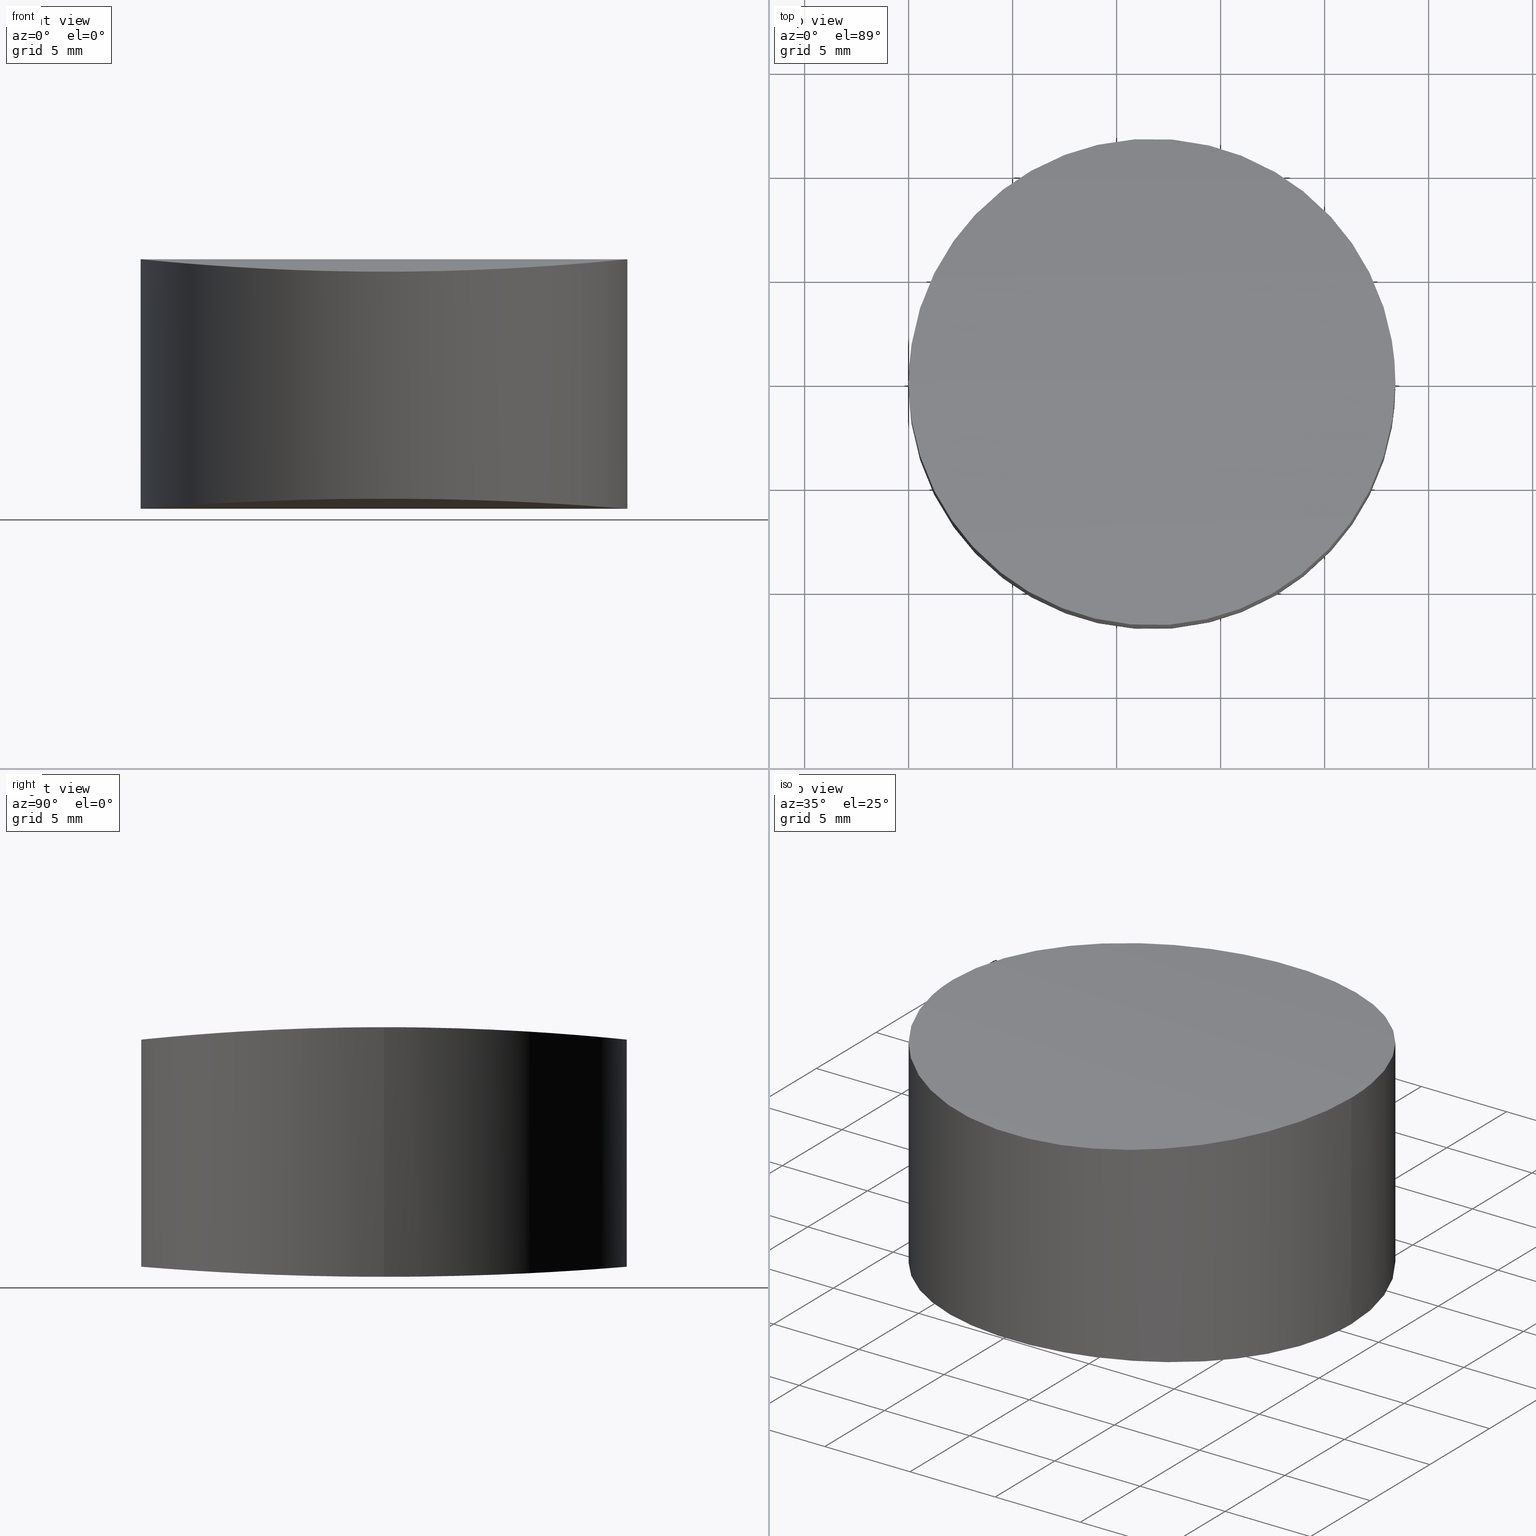
[diagram: canonical four-view strip — front | top / right | iso, engineering-drawing reading convention]
A machine part, canonical four-view strip (front | top / right | iso — engineering-drawing reading convention). The complete STEP part file that produces these views, byte-faithful:
ISO-10303-21;
HEADER;
FILE_DESCRIPTION (( 'STEP AP203' ),
    '1' );
FILE_NAME ('159007.STEP',
    '2024-12-10T01:54:20',
    ( '' ),
    ( '' ),
    'SwSTEP 2.0',
    'SolidWorks 2020',
    '' );
FILE_SCHEMA (( 'CONFIG_CONTROL_DESIGN' ));
ENDSEC;

DATA;
#1 = SECURITY_CLASSIFICATION ( '', '', #237 ) ;
#2 = EDGE_LOOP ( 'NONE', ( #31, #314 ) ) ;
#3 = EDGE_CURVE ( 'NONE', #56, #81, #285, .T. ) ;
#4 = VECTOR ( 'NONE', #33, 1000.000000000000000 ) ;
#5 = DIRECTION ( 'NONE',  ( -1.000000000000000000, -0.000000000000000000, -0.000000000000000000 ) ) ;
#6 = CARTESIAN_POINT ( 'NONE',  ( 3.982995561547500785, 8.802627526571223271, -11.72419075248639686 ) ) ;
#7 = CARTESIAN_POINT ( 'NONE',  ( 23.39999999999999858, 0.000000000000000000, -114.2399999999999949 ) ) ;
#8 = CARTESIAN_POINT ( 'NONE',  ( 13.23733871564719067, 11.62414453370664624, -11.51839965430079715 ) ) ;
#9 = CARTESIAN_POINT ( 'NONE',  ( 19.43711540575911556, -8.809545878192119872, -0.3388948439820815284 ) ) ;
#10 = CARTESIAN_POINT ( 'NONE',  ( 0.07583883942204949768, 1.537218956647703028, -11.99362423848649684 ) ) ;
#11 = CARTESIAN_POINT ( 'NONE',  ( 5.841248831715801337, -10.15621393453881716, -0.4515557225609400649 ) ) ;
#12 = CARTESIAN_POINT ( 'NONE',  ( 21.85655647599278595, 5.858164344078640617, -11.87926018310879606 ) ) ;
#13 = CARTESIAN_POINT ( 'NONE',  ( 23.39999999999999858, 0.000000000000000000, 0.000000000000000000 ) ) ;
#14 = CARTESIAN_POINT ( 'NONE',  ( 0.6200715280266766438, 3.777770137074502710, -11.94967941558338254 ) ) ;
#15 = DATE_AND_TIME ( #248, #76 ) ;
#16 = FACE_OUTER_BOUND ( 'NONE', #342, .T. ) ;
#17 = APPROVAL_STATUS ( 'not_yet_approved' ) ;
#18 = DIRECTION ( 'NONE',  ( 1.000000000000000000, 0.000000000000000000, 0.000000000000000000 ) ) ;
#19 = AXIS2_PLACEMENT_3D ( 'NONE', #98, #270, #104 ) ;
#20 = CALENDAR_DATE ( 2024, 10, 12 ) ;
#21 = DIRECTION ( 'NONE',  ( -0.000000000000000000, -0.000000000000000000, 1.000000000000000000 ) ) ;
#22 = CARTESIAN_POINT ( 'NONE',  ( 4.551175283784459680, -9.293829745750009863, -11.69293338668584248 ) ) ;
#23 = LOCAL_TIME ( 9, 54, 20.00000000000000000, #181 ) ;
#24 = COORDINATED_UNIVERSAL_TIME_OFFSET ( 8, 0, .AHEAD. ) ;
#25 = DIRECTION ( 'NONE',  ( 0.000000000000000000, 0.000000000000000000, 1.000000000000000000 ) ) ;
#26 = CLOSED_SHELL ( 'NONE', ( #225, #183, #311, #32, #85 ) ) ;
#27 = CARTESIAN_POINT ( 'NONE',  ( 17.55875116828418925, 10.15621393453877985, -0.4515557225609371783 ) ) ;
#28 = ORIENTED_EDGE ( 'NONE', *, *, #338, .T. ) ;
#29 = CARTESIAN_POINT ( 'NONE',  ( 13.23317778370108577, 11.62412662214878445, -0.5928285361961103117 ) ) ;
#30 = CARTESIAN_POINT ( 'NONE',  ( 23.39999999999999858, -1.734723475976807094E-14, -12.00000000000002842 ) ) ;
#31 = ORIENTED_EDGE ( 'NONE', *, *, #338, .F. ) ;
#32 = ADVANCED_FACE ( 'NONE', ( #231 ), #315, .T. ) ;
#33 = DIRECTION ( 'NONE',  ( -1.000000000000000000, -0.000000000000000000, -0.000000000000000000 ) ) ;
#34 = DIRECTION ( 'NONE',  ( 0.000000000000000000, 0.000000000000000000, 1.000000000000000000 ) ) ;
#35 = DIRECTION ( 'NONE',  ( -0.000000000000000000, -0.000000000000000000, 1.000000000000000000 ) ) ;
#36 = CARTESIAN_POINT ( 'NONE',  ( 4.099639464710812655E-16, -0.7730535575263360881, 1.863472483959461054E-17 ) ) ;
#37 = CARTESIAN_POINT ( 'NONE',  ( 0.2986171060930548071, -2.653989659704931725, -11.97542864770713855 ) ) ;
#38 = FACE_OUTER_BOUND ( 'NONE', #164, .T. ) ;
#39 = CARTESIAN_POINT ( 'NONE',  ( 12.47301215958805720, 11.69999035556283218, -11.51200029168871097 ) ) ;
#40 = CARTESIAN_POINT ( 'NONE',  ( 3.699251120683004768, -8.545365885079146295, -0.3197327694840372270 ) ) ;
#41 = CARTESIAN_POINT ( 'NONE',  ( 18.84891339696278578, 9.293760770083288492, -11.69293796382826756 ) ) ;
#42 = CARTESIAN_POINT ( 'NONE',  ( 2.890476056857163911, -7.737139707557255441, -0.2610277065373186045 ) ) ;
#43 = DIRECTION ( 'NONE',  ( -1.000000000000000000, -0.000000000000000000, -0.000000000000000000 ) ) ;
#44 = CC_DESIGN_DATE_AND_TIME_ASSIGNMENT ( #129, #217, ( #1 ) ) ;
#45 = CARTESIAN_POINT ( 'NONE',  ( 23.32416274024963343, -1.537202877766311815, -11.99362437258974090 ) ) ;
#46 = PERSON_AND_ORGANIZATION ( #275, #168 ) ;
#47 = CARTESIAN_POINT ( 'NONE',  ( 14.72462325462811528, -11.30880293928673908, -11.54418389181506832 ) ) ;
#48 = AXIS2_PLACEMENT_3D ( 'NONE', #271, #21, #18 ) ;
#49 = CARTESIAN_POINT ( 'NONE',  ( 16.88662854336311625, -10.51552536016703066, -11.60624649086615534 ) ) ;
#50 = PERSON_AND_ORGANIZATION_ROLE ( 'classification_officer' ) ;
#51 = CARTESIAN_POINT ( 'NONE',  ( 23.39999999999999858, -1.734723475976807094E-14, -12.00000000000002842 ) ) ;
#52 = DATE_AND_TIME ( #308, #59 ) ;
#53 = CARTESIAN_POINT ( 'NONE',  ( 9.028654702144425670, 11.39747696654536924, -0.5699472807666619012 ) ) ;
#54 = ORIENTED_EDGE ( 'NONE', *, *, #297, .F. ) ;
#55 = CARTESIAN_POINT ( 'NONE',  ( 10.92701351306280522, 11.70000479672055960, -0.6007132732841652389 ) ) ;
#56 = VERTEX_POINT ( 'NONE', #92 ) ;
#57 = EDGE_CURVE ( 'NONE', #56, #189, #121, .T. ) ;
#58 = LINE ( 'NONE', #115, #4 ) ;
#59 = LOCAL_TIME ( 9, 54, 20.00000000000000000, #184 ) ;
#60 = CARTESIAN_POINT ( 'NONE',  ( 10.16682221629891103, -11.62412662214881998, -0.5928285361961119770 ) ) ;
#61 = CARTESIAN_POINT ( 'NONE',  ( 2.400120778135727519E-15, -1.591439800476566529E-14, -12.00000000000002487 ) ) ;
#62 = CARTESIAN_POINT ( 'NONE',  ( 20.50235470179524810, -7.717308984799802651, -0.2605729822216483749 ) ) ;
#63 = CARTESIAN_POINT ( 'NONE',  ( 7.575573302874869519, 10.95563577515336995, -11.57228736914585987 ) ) ;
#64 = CARTESIAN_POINT ( 'NONE',  ( 21.85621763644266835, -5.858745820648576519, -0.1485549043856245754 ) ) ;
#65 = CARTESIAN_POINT ( 'NONE',  ( 1.565426281899078509, 5.858907706403404525, -11.87819331356852892 ) ) ;
#66 = CARTESIAN_POINT ( 'NONE',  ( 7.574770344553465762, -10.95533275989319222, -0.5264124227938429268 ) ) ;
#67 = CARTESIAN_POINT ( 'NONE',  ( 17.55894296685362832, 10.13455308222904705, -11.63412722221021944 ) ) ;
#68 = CARTESIAN_POINT ( 'NONE',  ( 14.37134529785558534, -11.39747696654540299, -0.5699472807666666752 ) ) ;
#69 = CARTESIAN_POINT ( 'NONE',  ( 10.16283743065999623, -11.62416830244085730, -11.51839767062848985 ) ) ;
#70 = EDGE_CURVE ( 'NONE', #189, #366, #58, .T. ) ;
#71 = CALENDAR_DATE ( 2024, 10, 12 ) ;
#72 = CARTESIAN_POINT ( 'NONE',  ( 0.7444088895784195525, -4.124545188749847213, -11.93989314708536398 ) ) ;
#73 =( NAMED_UNIT ( * ) SI_UNIT ( $, .STERADIAN. ) SOLID_ANGLE_UNIT ( ) );
#74 = CARTESIAN_POINT ( 'NONE',  ( 23.39999999999998792, -0.7728711627919478966, -12.00000000000002487 ) ) ;
#75 = CARTESIAN_POINT ( 'NONE',  ( 5.509302477299087286, -9.935441898776597114, -11.64843186779766526 ) ) ;
#76 = LOCAL_TIME ( 9, 54, 20.00000000000000000, #24 ) ;
#77 =( LENGTH_UNIT ( ) NAMED_UNIT ( * ) SI_UNIT ( .MILLI., .METRE. ) );
#78 = CARTESIAN_POINT ( 'NONE',  ( 18.82133060416483161, -9.291127797251709453, -11.69267052076263269 ) ) ;
#79 = APPROVAL_ROLE ( '' ) ;
#80 = CARTESIAN_POINT ( 'NONE',  ( 15.82522965544652394, 10.95533275989315847, -0.5264124227938457024 ) ) ;
#81 = VERTEX_POINT ( 'NONE', #61 ) ;
#82 = CARTESIAN_POINT ( 'NONE',  ( 10.16255417020305885, 11.62413557791161800, -0.5928260903456249453 ) ) ;
#83 = CARTESIAN_POINT ( 'NONE',  ( 15.46008770008044131, 11.08598889444955482, -0.5391162524112173005 ) ) ;
#84 = PRODUCT_DEFINITION_SHAPE ( 'NONE', 'NONE',  #258 ) ;
#85 = ADVANCED_FACE ( 'NONE', ( #167 ), #117, .T. ) ;
#86 = CARTESIAN_POINT ( 'NONE',  ( 0.8779362651289264186, 4.495236254901521455, -11.92939142474985559 ) ) ;
#87 = CARTESIAN_POINT ( 'NONE',  ( 22.78600071064297694, -3.760053267498945750, -0.06130349122854730770 ) ) ;
#88 = DIRECTION ( 'NONE',  ( -1.000000000000000000, -0.000000000000000000, -0.000000000000000000 ) ) ;
#89 = CARTESIAN_POINT ( 'NONE',  ( 23.32413486492310284, -1.533118974322452921, -0.007840524927638608046 ) ) ;
#90 = CARTESIAN_POINT ( 'NONE',  ( 19.43711588047457184, 8.809561870354297497, -11.72458239256462065 ) ) ;
#91 = LOCAL_TIME ( 9, 54, 20.00000000000000000, #246 ) ;
#92 = CARTESIAN_POINT ( 'NONE',  ( 23.39999999999999858, -1.734723475976807094E-14, -12.00000000000002842 ) ) ;
#93 = CARTESIAN_POINT ( 'NONE',  ( 0.8781707995317086235, -4.495796147901357287, -0.08687113484869973812 ) ) ;
#94 = CARTESIAN_POINT ( 'NONE',  ( 15.47784711752203357, 11.07990198258445602, -11.56247997843347264 ) ) ;
#95 = CARTESIAN_POINT ( 'NONE',  ( 14.74629982889175572, -11.30294017466846590, -0.5604780243197629019 ) ) ;
#96 = CC_DESIGN_DATE_AND_TIME_ASSIGNMENT ( #15, #213, ( #258 ) ) ;
#97 = CARTESIAN_POINT ( 'NONE',  ( 19.70062871853417974, -8.545482839970350852, -11.74014259164259322 ) ) ;
#98 = CARTESIAN_POINT ( 'NONE',  ( 0.000000000000000000, 0.000000000000000000, 0.000000000000000000 ) ) ;
#99 = CARTESIAN_POINT ( 'NONE',  ( 21.63542989001358308, -6.190716718690232767, -11.86391005497066864 ) ) ;
#100 = DATE_AND_TIME ( #304, #23 ) ;
#101 = CARTESIAN_POINT ( 'NONE',  ( 2.897445945604871120, -7.717088157217175670, -11.78822306249216467 ) ) ;
#102 = DATE_AND_TIME ( #71, #91 ) ;
#103 = CARTESIAN_POINT ( 'NONE',  ( 13.23282361508650418, -11.62416520523439267, -11.51839519002638923 ) ) ;
#104 = DIRECTION ( 'NONE',  ( 1.000000000000000000, 0.000000000000000000, 0.000000000000000000 ) ) ;
#105 = CARTESIAN_POINT ( 'NONE',  ( 21.83460593353969159, -5.858851705195758264, -11.87819564413548790 ) ) ;
#106 = APPLICATION_PROTOCOL_DEFINITION ( 'international standard', 'config_control_design', 1994, #321 ) ;
#107 = CARTESIAN_POINT ( 'NONE',  ( 5.509062355880049999, 9.935291775809005799, -0.4326467589744427689 ) ) ;
#108 = CARTESIAN_POINT ( 'NONE',  ( 20.99365648191689004, 7.149046933508472534, -0.2221153666618243816 ) ) ;
#109 = CARTESIAN_POINT ( 'NONE',  ( 3.962884594240894121, 8.809545878192095003, -0.3388948439820752001 ) ) ;
#110 = CARTESIAN_POINT ( 'NONE',  ( 23.00881916514715542, 3.024562361228710916, -11.96792190223194119 ) ) ;
#111 = UNCERTAINTY_MEASURE_WITH_UNIT (LENGTH_MEASURE( 1.000000000000000082E-05 ), #77, 'distance_accuracy_value', 'NONE');
#112 = B_SPLINE_CURVE_WITH_KNOTS ( 'NONE', 3,
 ( #347, #201, #291, #37, #176, #239, #72, #208, #277, #273, #235, #101, #152, #182, #22, #75, #269, #180, #335, #247, #299, #131, #69, #355, #305, #103, #210, #47, #358, #360, #49, #329, #353, #78, #328, #97, #177, #302, #99, #105, #300, #157, #274, #216, #307, #45, #74, #51 ),
 .UNSPECIFIED., .F., .F.,
 ( 4, 2, 2, 2, 2, 2, 2, 2, 2, 1, 2, 2, 2, 2, 2, 2, 2, 2, 2, 2, 2, 1, 2, 2, 4 ),
 ( 0.01828516196742803468, 0.02057082520257585978, 0.02171365682014977580, 0.02285648843772369182, 0.02514215167287152039, 0.02628498329044543294, 0.02742781490801934896, 0.02971347814316717406, 0.03085630976074108314, 0.03199914137831499222, 0.03314197299588890477, 0.03428480461346281732, 0.03657046784861063549, 0.03885613108375845365, 0.03999896270133236620, 0.04114179431890627181, 0.04342745755405408303, 0.04457028917162799558, 0.04571312078920189426, 0.04799878402434971936, 0.04914161564192362497, 0.05028444725949753752, 0.05142727887707144313, 0.05257011049464535568, 0.05485577372979317384 ),
 .UNSPECIFIED. ) ;
#113 = ORIENTED_EDGE ( 'NONE', *, *, #3, .F. ) ;
#114 = CARTESIAN_POINT ( 'NONE',  ( 23.10126563405655631, -2.654502444624608604, -0.03023248949577805877 ) ) ;
#115 = CARTESIAN_POINT ( 'NONE',  ( 23.39999999999999858, 0.000000000000000000, -2.775557561562891351E-14 ) ) ;
#116 = CARTESIAN_POINT ( 'NONE',  ( 21.22013636553777616, -6.811968760865273254, -0.2028307600976554381 ) ) ;
#117 = CYLINDRICAL_SURFACE ( 'NONE', #209, 11.69999999999999929 ) ;
#118 = CARTESIAN_POINT ( 'NONE',  ( 13.23744582979695039, -11.62413557791165353, -0.5928260903456301634 ) ) ;
#119 = CARTESIAN_POINT ( 'NONE',  ( 21.22048826543705857, 6.811478211133129790, -11.83515225822453587 ) ) ;
#120 = CARTESIAN_POINT ( 'NONE',  ( 4.578233710403004864, -9.290788312627928036, -0.3781588599475306234 ) ) ;
#121 = LINE ( 'NONE', #267, #202 ) ;
#122 = APPROVAL ( #244, 'δָ��' ) ;
#123 = CARTESIAN_POINT ( 'NONE',  ( 23.39999999999999858, 0.000000000000000000, 0.000000000000000000 ) ) ;
#124 = CARTESIAN_POINT ( 'NONE',  ( 16.88432592861272141, 10.49567260976044736, -11.60754310520130694 ) ) ;
#125 =( NAMED_UNIT ( * ) PLANE_ANGLE_UNIT ( ) SI_UNIT ( $, .RADIAN. ) );
#126 = FACE_OUTER_BOUND ( 'NONE', #2, .T. ) ;
#127 = PERSON_AND_ORGANIZATION ( #275, #168 ) ;
#128 = LINE ( 'NONE', #178, #250 ) ;
#129 = DATE_AND_TIME ( #20, #280 ) ;
#130 = CARTESIAN_POINT ( 'NONE',  ( 0.07586513507690043068, 1.533118974322451589, -0.007840524927638588965 ) ) ;
#131 = CARTESIAN_POINT ( 'NONE',  ( 9.029036142381471564, -11.39756515415939475, -11.53696387847076998 ) ) ;
#132 = PERSON_AND_ORGANIZATION ( #275, #168 ) ;
#133 = CARTESIAN_POINT ( 'NONE',  ( 8.653700171108251737, 11.30294017466843215, -0.5604780243197567957 ) ) ;
#134 = EDGE_CURVE ( 'NONE', #81, #56, #112, .T. ) ;
#135 = CARTESIAN_POINT ( 'NONE',  ( 19.70074887931697916, 8.545365885079128532, -0.3197327694840387258 ) ) ;
#136 = ORIENTED_EDGE ( 'NONE', *, *, #297, .T. ) ;
#137 = CARTESIAN_POINT ( 'NONE',  ( 2.179863634462236188, 6.811968760865259043, -0.2028307600976550218 ) ) ;
#138 = CARTESIAN_POINT ( 'NONE',  ( 23.39999999999999147, 0.7728711628131414990, -12.00000000000002665 ) ) ;
#139 = ORIENTED_EDGE ( 'NONE', *, *, #57, .T. ) ;
#140 = CC_DESIGN_APPROVAL ( #122, ( #258 ) ) ;
#141 = CARTESIAN_POINT ( 'NONE',  ( 17.89080433049062790, 9.935375168748358021, -11.64843659956239463 ) ) ;
#142 = CARTESIAN_POINT ( 'NONE',  ( 20.24535061976958517, -8.000765346559376212, -0.2801894637638208674 ) ) ;
#143 = DIRECTION ( 'NONE',  ( -0.000000000000000000, -0.000000000000000000, 1.000000000000000000 ) ) ;
#144 = CARTESIAN_POINT ( 'NONE',  ( 1.734723475976807094E-15, 0.000000000000000000, -2.775557561562891351E-14 ) ) ;
#145 = CARTESIAN_POINT ( 'NONE',  ( 10.92727981659755798, 11.70000964261554799, -11.51199867998030335 ) ) ;
#146 = APPROVAL_PERSON_ORGANIZATION ( #132, #268, #359 ) ;
#147 = CARTESIAN_POINT ( 'NONE',  ( 16.19575416039305082, -10.82184673084238469, -0.5134450975553704888 ) ) ;
#148 = CARTESIAN_POINT ( 'NONE',  ( 20.50261246364091505, 7.717021351404852680, -11.78822673520258313 ) ) ;
#149 = CARTESIAN_POINT ( 'NONE',  ( 17.89093764411997256, -9.935291775809035997, -0.4326467589744435460 ) ) ;
#150 = DIRECTION ( 'NONE',  ( 0.000000000000000000, 0.000000000000000000, 1.000000000000000000 ) ) ;
#151 = CARTESIAN_POINT ( 'NONE',  ( 2.406343518083096100, -7.149046933508488522, -0.2221153666618218281 ) ) ;
#152 = CARTESIAN_POINT ( 'NONE',  ( 3.154523298431360256, -8.000635380293878995, -11.77228095979043054 ) ) ;
#153 = PERSON_AND_ORGANIZATION_ROLE ( 'design_owner' ) ;
#154 = CYLINDRICAL_SURFACE ( 'NONE', #48, 11.69999999999999929 ) ;
#155 = APPLICATION_PROTOCOL_DEFINITION ( 'international standard', 'config_control_design', 1994, #278 ) ;
#156 = CARTESIAN_POINT ( 'NONE',  ( 23.39999999999999858, 0.000000000000000000, 0.000000000000000000 ) ) ;
#157 = CARTESIAN_POINT ( 'NONE',  ( 22.52208180832384699, -4.495191729084483612, -11.92939282672188384 ) ) ;
#158 = PERSON_AND_ORGANIZATION ( #275, #168 ) ;
#159 = CARTESIAN_POINT ( 'NONE',  ( 23.39999999999999858, 0.000000000000000000, -114.2399999999999949 ) ) ;
#160 = CC_DESIGN_PERSON_AND_ORGANIZATION_ASSIGNMENT ( #179, #334, ( #258 ) ) ;
#161 = CARTESIAN_POINT ( 'NONE',  ( 14.35454935710454727, 11.40125458762065414, -0.5703269592500258556 ) ) ;
#162 = CARTESIAN_POINT ( 'NONE',  ( 2.409216876242874950, 7.121773319223103194, -0.2218129154057481012 ) ) ;
#163 = EDGE_LOOP ( 'NONE', ( #113, #253 ) ) ;
#164 = EDGE_LOOP ( 'NONE', ( #186, #54 ) ) ;
#165 = CARTESIAN_POINT ( 'NONE',  ( 0.3024493376041800796, 2.671026038821413984, -11.97511698997220186 ) ) ;
#166 = CYLINDRICAL_SURFACE ( 'NONE', #313, 114.2399999999999665 ) ;
#167 = FACE_OUTER_BOUND ( 'NONE', #282, .T. ) ;
#168 = ORGANIZATION ( 'δָ��', 'δָ��', '' ) ;
#169 = CARTESIAN_POINT ( 'NONE',  ( 0.3025351687118145727, -2.671396723097067216, -0.03061267240349871063 ) ) ;
#170 = CARTESIAN_POINT ( 'NONE',  ( 14.37112619128460977, 11.39752698996652924, -11.53696698724230885 ) ) ;
#171 = CARTESIAN_POINT ( 'NONE',  ( 0.6202573065848937528, -3.778319721124474562, -0.06191118707210864491 ) ) ;
#172 = CARTESIAN_POINT ( 'NONE',  ( 0.3969480738167474043, 3.045879069599135569, -11.96745749760723498 ) ) ;
#173 = CARTESIAN_POINT ( 'NONE',  ( 15.47827439538876781, -11.07975820281245660, -0.5385086668670361343 ) ) ;
#174 = CARTESIAN_POINT ( 'NONE',  ( 22.65560668606557471, 4.124503458994857930, -11.93989436517893310 ) ) ;
#175 = CARTESIAN_POINT ( 'NONE',  ( 12.47298648693720224, -11.70000479672059335, -0.6007132732841689027 ) ) ;
#176 = CARTESIAN_POINT ( 'NONE',  ( 0.3911890143094745032, -3.024593475415615185, -11.96792124186440986 ) ) ;
#177 = CARTESIAN_POINT ( 'NONE',  ( 20.50962034996463501, -7.737049614015326426, -11.78784533109107890 ) ) ;
#178 = CARTESIAN_POINT ( 'NONE',  ( 1.734723475976807094E-15, -1.591439800476566845E-14, -23.39999999999999858 ) ) ;
#179 = PERSON_AND_ORGANIZATION ( #275, #168 ) ;
#180 = CARTESIAN_POINT ( 'NONE',  ( 6.515796357767368541, -10.49573314314396733, -11.60753856778463522 ) ) ;
#181 = COORDINATED_UNIVERSAL_TIME_OFFSET ( 8, 0, .AHEAD. ) ;
#182 = CARTESIAN_POINT ( 'NONE',  ( 3.962961990564490833, -8.809630924300970278, -11.72457805813054854 ) ) ;
#183 = ADVANCED_FACE ( 'NONE', ( #126 ), #357, .T. ) ;
#184 = COORDINATED_UNIVERSAL_TIME_OFFSET ( 8, 0, .AHEAD. ) ;
#185 = CARTESIAN_POINT ( 'NONE',  ( 16.88722296981794457, 10.51522991769792448, -0.4845851749743647074 ) ) ;
#186 = ORIENTED_EDGE ( 'NONE', *, *, #70, .F. ) ;
#187 = CARTESIAN_POINT ( 'NONE',  ( 5.840822757568201240, 10.13441499364734177, -0.4502636698667806248 ) ) ;
#188 = CC_DESIGN_SECURITY_CLASSIFICATION ( #1, ( #195 ) ) ;
#189 = VERTEX_POINT ( 'NONE', #156 ) ;
#190 =( GEOMETRIC_REPRESENTATION_CONTEXT ( 3 ) GLOBAL_UNCERTAINTY_ASSIGNED_CONTEXT ( ( #111 ) ) GLOBAL_UNIT_ASSIGNED_CONTEXT ( ( #77, #125, #73 ) ) REPRESENTATION_CONTEXT ( 'NONE', 'WORKASPACE' ) );
#191 = SHAPE_DEFINITION_REPRESENTATION ( #84, #294 ) ;
#192 = CARTESIAN_POINT ( 'NONE',  ( 19.41729507277802824, 8.802366688191272104, -0.3393592820513068320 ) ) ;
#193 = ORIENTED_EDGE ( 'NONE', *, *, #238, .T. ) ;
#194 = AXIS2_PLACEMENT_3D ( 'NONE', #265, #88, #150 ) ;
#195 = PRODUCT_DEFINITION_FORMATION_WITH_SPECIFIED_SOURCE ( '�κ�', '', #251, .NOT_KNOWN. ) ;
#196 = CARTESIAN_POINT ( 'NONE',  ( 2.424020065497973457E-15, 0.7728792911759192474, -12.00000000000002665 ) ) ;
#197 = CC_DESIGN_PERSON_AND_ORGANIZATION_ASSIGNMENT ( #46, #330, ( #195 ) ) ;
#198 = CARTESIAN_POINT ( 'NONE',  ( 17.55917724243181155, -10.13441499364736487, -0.4502636698667797921 ) ) ;
#199 = CARTESIAN_POINT ( 'NONE',  ( 20.99117683622786146, 7.121266581235918380, -11.81972969374128368 ) ) ;
#200 = CARTESIAN_POINT ( 'NONE',  ( 0.3970731371139105681, -3.046349027864591719, -0.04003755478587783107 ) ) ;
#201 = CARTESIAN_POINT ( 'NONE',  ( 2.370845219364786649E-15, -0.7728792911547224254, -12.00000000000002665 ) ) ;
#202 = VECTOR ( 'NONE', #143, 1000.000000000000000 ) ;
#203 = CARTESIAN_POINT ( 'NONE',  ( 22.52182918831537251, 4.495796117918829715, -0.08687178053423470769 ) ) ;
#204 = CARTESIAN_POINT ( 'NONE',  ( 14.74597115083577137, 11.30302687492712010, -11.54465041235039102 ) ) ;
#205 = CARTESIAN_POINT ( 'NONE',  ( 1.734723475976807094E-15, 0.000000000000000000, -2.775557561562891351E-14 ) ) ;
#206 = CARTESIAN_POINT ( 'NONE',  ( 8.675532182843904039, 11.30884462609598096, -11.54418052236263748 ) ) ;
#207 = CARTESIAN_POINT ( 'NONE',  ( 23.39999999999999858, 0.7730775123008858385, 2.743445601384745767E-17 ) ) ;
#208 = CARTESIAN_POINT ( 'NONE',  ( 1.184467997860975563, -5.186615956781576386, -11.90602143651821976 ) ) ;
#209 = AXIS2_PLACEMENT_3D ( 'NONE', #261, #35, #230 ) ;
#210 = CARTESIAN_POINT ( 'NONE',  ( 14.35402199147960900, -11.40137529016258888, -11.53665303616094562 ) ) ;
#211 = APPROVAL_DATE_TIME ( #102, #122 ) ;
#212 = CARTESIAN_POINT ( 'NONE',  ( 1.734723475976807094E-15, 0.000000000000000000, -2.775557561562891351E-14 ) ) ;
#213 = DATE_TIME_ROLE ( 'creation_date' ) ;
#214 = CARTESIAN_POINT ( 'NONE',  ( 0.3913381604001262004, 3.025157802228426451, -0.03946954025045218417 ) ) ;
#215 = MECHANICAL_CONTEXT ( 'NONE', #278, 'mechanical' ) ;
#216 = CARTESIAN_POINT ( 'NONE',  ( 23.00306021372547249, -3.045847824117852376, -11.96745816627809056 ) ) ;
#217 = DATE_TIME_ROLE ( 'classification_date' ) ;
#218 = CARTESIAN_POINT ( 'NONE',  ( 1.184762323799809058, 5.187208748393875801, -0.1156270152500745857 ) ) ;
#219 = CARTESIAN_POINT ( 'NONE',  ( 21.83439427511706654, 5.859213009914259196, -0.1498548516609604642 ) ) ;
#220 = CARTESIAN_POINT ( 'NONE',  ( 1.543782363557342441, 5.858745820648566749, -0.1485549043856242424 ) ) ;
#221 = ORIENTED_EDGE ( 'NONE', *, *, #3, .T. ) ;
#222 = B_SPLINE_CURVE_WITH_KNOTS ( 'NONE', 3,
 ( #212, #331, #130, #245, #214, #333, #363, #218, #220, #137, #162, #336, #283, #109, #364, #107, #187, #339, #312, #309, #133, #53, #82, #55, #341, #29, #161, #249, #83, #80, #185, #27, #254, #281, #192, #135, #252, #108, #362, #219, #344, #203, #266, #295, #292, #322, #207, #13 ),
 .UNSPECIFIED., .F., .F.,
 ( 4, 2, 2, 2, 2, 2, 2, 2, 2, 1, 2, 2, 2, 2, 2, 2, 2, 2, 2, 2, 2, 1, 2, 2, 4 ),
 ( 0.000000000000000000, 0.002286163231313159076, 0.003429244846969739698, 0.004572326462626319886, 0.006858489693939481997, 0.008001571309596059584, 0.009144652925252639772, 0.01143081615656580362, 0.01257389777222238207, 0.01371697938787896399, 0.01486006100353554245, 0.01600314261919211917, 0.01828930585050527607, 0.02057546908181842951, 0.02171855069747500797, 0.02286163231313158295, 0.02514779554444473639, 0.02629087716010131484, 0.02743395877575788636, 0.02972012200707102592, 0.03086320362272760090, 0.03200628523838416895, 0.03314936685404074046, 0.03429244846969731197, 0.03657861170101045500 ),
 .UNSPECIFIED. ) ;
#223 = CC_DESIGN_APPROVAL ( #268, ( #195 ) ) ;
#224 = APPROVAL ( #332, 'δָ��' ) ;
#225 = ADVANCED_FACE ( 'NONE', ( #16 ), #154, .T. ) ;
#226 = CARTESIAN_POINT ( 'NONE',  ( 22.65534398514756731, -4.125200318007566480, -0.07395498977493022985 ) ) ;
#227 = CARTESIAN_POINT ( 'NONE',  ( 20.24553979347370003, 8.000567808726462005, -11.77228481284947748 ) ) ;
#228 = DESIGN_CONTEXT ( 'detailed design', #321, 'design' ) ;
#229 = CARTESIAN_POINT ( 'NONE',  ( 7.939912299919556382, -11.08598889444958679, -0.5391162524112035337 ) ) ;
#230 = DIRECTION ( 'NONE',  ( 1.000000000000000000, 0.000000000000000000, 0.000000000000000000 ) ) ;
#231 = FACE_OUTER_BOUND ( 'NONE', #163, .T. ) ;
#232 = CARTESIAN_POINT ( 'NONE',  ( 1.204531215918076992, -5.184733302826335155, -0.1172146429855891181 ) ) ;
#233 = CARTESIAN_POINT ( 'NONE',  ( 2.400120778135727519E-15, -1.591439800476566529E-14, -12.00000000000002487 ) ) ;
#234 = CARTESIAN_POINT ( 'NONE',  ( 20.99078312375714006, -7.121773319223119181, -0.2218129154057497110 ) ) ;
#235 = CARTESIAN_POINT ( 'NONE',  ( 2.408872658542130285, -7.121331352466596876, -11.81972640874908898 ) ) ;
#236 = CC_DESIGN_PERSON_AND_ORGANIZATION_ASSIGNMENT ( #127, #356, ( #195 ) ) ;
#237 = SECURITY_CLASSIFICATION_LEVEL ( 'unclassified' ) ;
#238 = EDGE_CURVE ( 'NONE', #81, #366, #128, .T. ) ;
#239 = CARTESIAN_POINT ( 'NONE',  ( 0.6137794146774335768, -3.759399517897988208, -11.95017614430741304 ) ) ;
#240 = APPROVAL_PERSON_ORGANIZATION ( #158, #224, #79 ) ;
#241 = PERSON_AND_ORGANIZATION ( #275, #168 ) ;
#242 = DIRECTION ( 'NONE',  ( -0.000000000000000000, -0.000000000000000000, 1.000000000000000000 ) ) ;
#243 = B_SPLINE_CURVE_WITH_KNOTS ( 'NONE', 3,
 ( #123, #324, #89, #114, #327, #87, #226, #319, #64, #116, #234, #62, #142, #9, #352, #149, #198, #346, #147, #173, #95, #68, #118, #175, #264, #60, #350, #348, #229, #66, #262, #11, #316, #120, #298, #40, #42, #151, #288, #260, #232, #93, #171, #200, #169, #290, #36, #205 ),
 .UNSPECIFIED., .F., .F.,
 ( 4, 2, 2, 2, 2, 2, 2, 2, 2, 1, 2, 2, 2, 2, 2, 2, 2, 2, 2, 2, 2, 1, 2, 2, 4 ),
 ( -0.03657804497958175305, -0.03429191716835790216, -0.03314885326274597671, -0.03200578935713405820, -0.02971966154591020731, -0.02857659764029828534, -0.02743353373468636336, -0.02514740592346251247, -0.02400434201785058008, -0.02286127811223865117, -0.02171821420662671878, -0.02057515030101478640, -0.01828902248979093204, -0.01600289467856707767, -0.01485983077295515223, -0.01371676686734322331, -0.01143063905611935854, -0.01028757515050742616, -0.009144511244895493773, -0.006858383433671622065, -0.005715319528059686210, -0.004572255622447750356, -0.003429191716835811032, -0.002286127811223878648, 0.000000000000000000 ),
 .UNSPECIFIED. ) ;
#244 = APPROVAL_STATUS ( 'not_yet_approved' ) ;
#245 = CARTESIAN_POINT ( 'NONE',  ( 0.2987343659434484322, 2.654502444624603275, -0.03023248949577795469 ) ) ;
#246 = COORDINATED_UNIVERSAL_TIME_OFFSET ( 8, 0, .AHEAD. ) ;
#247 = CARTESIAN_POINT ( 'NONE',  ( 7.922297152581086799, -11.07995132871551291, -11.56247607193387594 ) ) ;
#248 = CALENDAR_DATE ( 2024, 10, 12 ) ;
#249 = CARTESIAN_POINT ( 'NONE',  ( 14.72520060699774724, 11.30865025401243429, -0.5610461686817673765 ) ) ;
#250 = VECTOR ( 'NONE', #242, 1000.000000000000000 ) ;
#251 = PRODUCT ( '159007', '159007', '', ( #215 ) ) ;
#252 = CARTESIAN_POINT ( 'NONE',  ( 20.50952394314282401, 7.737139707557232349, -0.2610277065373203254 ) ) ;
#253 = ORIENTED_EDGE ( 'NONE', *, *, #134, .F. ) ;
#254 = CARTESIAN_POINT ( 'NONE',  ( 18.51196396589719129, 9.520139631923248302, -0.3971705177279316046 ) ) ;
#255 = CARTESIAN_POINT ( 'NONE',  ( 23.32417234253878391, 1.532767790762665117, -11.99362786624891086 ) ) ;
#256 = APPROVAL_PERSON_ORGANIZATION ( #301, #122, #276 ) ;
#257 = CARTESIAN_POINT ( 'NONE',  ( 22.78623347452534276, 3.759361080725645898, -11.95017716355226867 ) ) ;
#258 = PRODUCT_DEFINITION ( 'δ֪', '', #195, #228 ) ;
#259 = CARTESIAN_POINT ( 'NONE',  ( 5.841883407253506633, 10.15658483221741726, -11.63305987221557558 ) ) ;
#260 = CARTESIAN_POINT ( 'NONE',  ( 1.565605724882917826, -5.859213009914276071, -0.1498548516609579939 ) ) ;
#261 = CARTESIAN_POINT ( 'NONE',  ( 11.69999999999999929, -1.734723475976807094E-14, -23.39999999999999858 ) ) ;
#262 = CARTESIAN_POINT ( 'NONE',  ( 6.512777030182041571, -10.51522991769795290, -0.4845851749743617098 ) ) ;
#263 = CARTESIAN_POINT ( 'NONE',  ( 1.764606549602166563, 6.190775430006238089, -11.86390746951188646 ) ) ;
#264 = CARTESIAN_POINT ( 'NONE',  ( 10.92686831260636460, -11.69999520282893890, -0.6007122855224966695 ) ) ;
#265 = CARTESIAN_POINT ( 'NONE',  ( 23.39999999999999858, -2.117859928473768005E-15, 128.5000000000000000 ) ) ;
#266 = CARTESIAN_POINT ( 'NONE',  ( 22.77974269341509483, 3.778319721124463904, -0.06191118707211194783 ) ) ;
#267 = CARTESIAN_POINT ( 'NONE',  ( 23.39999999999999858, -1.734723475976807094E-14, -23.39999999999999858 ) ) ;
#268 = APPROVAL ( #17, 'δָ��' ) ;
#269 = CARTESIAN_POINT ( 'NONE',  ( 5.841168882209669455, -10.13461787880729936, -11.63412253332844060 ) ) ;
#270 = DIRECTION ( 'NONE',  ( 0.000000000000000000, 0.000000000000000000, 1.000000000000000000 ) ) ;
#271 = CARTESIAN_POINT ( 'NONE',  ( 11.69999999999999929, -1.734723475976807094E-14, -23.39999999999999858 ) ) ;
#272 = COORDINATED_UNIVERSAL_TIME_OFFSET ( 8, 0, .AHEAD. ) ;
#273 = CARTESIAN_POINT ( 'NONE',  ( 2.179556174245997457, -6.811540560842898273, -11.83514923692068166 ) ) ;
#274 = CARTESIAN_POINT ( 'NONE',  ( 22.77994130366390024, -3.777732106720883110, -11.94968042965643740 ) ) ;
#275 = PERSON ( 'δָ��', 'δָ��', 'δָ��', ('δָ��'), ('δָ��'), ('δָ��') ) ;
#276 = APPROVAL_ROLE ( '' ) ;
#277 = CARTESIAN_POINT ( 'NONE',  ( 1.543475057580754317, -5.858220113600820511, -11.87925787574100767 ) ) ;
#278 = APPLICATION_CONTEXT ( 'configuration controlled 3d designs of mechanical parts and assemblies' ) ;
#279 = MANIFOLD_SOLID_BREP ( '�г�-����1', #26 ) ;
#280 = LOCAL_TIME ( 9, 54, 20.00000000000000000, #272 ) ;
#281 = CARTESIAN_POINT ( 'NONE',  ( 18.82176628959698306, 9.290788312627901391, -0.3781588599475181334 ) ) ;
#282 = EDGE_LOOP ( 'NONE', ( #286, #310, #139, #28 ) ) ;
#283 = CARTESIAN_POINT ( 'NONE',  ( 3.154649380230421407, 8.000765346559356672, -0.2801894637638149277 ) ) ;
#284 = CARTESIAN_POINT ( 'NONE',  ( 23.10138913313453912, 2.653962277840836048, -11.97542915491631454 ) ) ;
#285 = B_SPLINE_CURVE_WITH_KNOTS ( 'NONE', 3,
 ( #30, #138, #255, #284, #110, #257, #174, #351, #12, #119, #199, #148, #227, #90, #41, #141, #67, #124, #320, #94, #204, #170, #8, #39, #145, #293, #289, #206, #326, #63, #323, #259, #345, #343, #6, #296, #287, #349, #263, #65, #317, #86, #14, #172, #165, #10, #196, #233 ),
 .UNSPECIFIED., .F., .F.,
 ( 4, 2, 2, 2, 2, 2, 2, 2, 2, 1, 2, 2, 2, 2, 2, 2, 2, 2, 2, 2, 2, 1, 2, 2, 4 ),
 ( 0.05485577372979317384, 0.05714143696500378206, 0.05828426858260908616, 0.05942710020021439027, 0.06171276343542499154, 0.06285559505303030259, 0.06399842667063559976, 0.06628408990584620797, 0.06742692152345150514, 0.06856975314105681618, 0.06971258475866212723, 0.07085541637626742439, 0.07314107961147803261, 0.07542674284668864082, 0.07656957446429395187, 0.07771240608189924903, 0.07999806931710987112, 0.08114090093471516829, 0.08228373255232046546, 0.08456939578753107367, 0.08571222740513637084, 0.08685505902274168188, 0.08799789064034699293, 0.08914072225795229010, 0.09142638549316289831 ),
 .UNSPECIFIED. ) ;
#286 = ORIENTED_EDGE ( 'NONE', *, *, #238, .F. ) ;
#287 = CARTESIAN_POINT ( 'NONE',  ( 2.890437360382252407, 7.737116149366350726, -11.78784166734642191 ) ) ;
#288 = CARTESIAN_POINT ( 'NONE',  ( 1.764729552675459612, -6.190971802057054774, -0.1674275286744806857 ) ) ;
#289 = CARTESIAN_POINT ( 'NONE',  ( 9.046138238676569188, 11.40141271651924093, -11.53664998654348750 ) ) ;
#290 = CARTESIAN_POINT ( 'NONE',  ( 0.07587263149631510994, -1.537505463828514163, -0.007844571954057509913 ) ) ;
#291 = CARTESIAN_POINT ( 'NONE',  ( 0.07582923724121559683, -1.532783777119923085, -11.99362773227861290 ) ) ;
#292 = CARTESIAN_POINT ( 'NONE',  ( 23.09746483128817829, 2.671396723097066328, -0.03061267240350131272 ) ) ;
#293 = CARTESIAN_POINT ( 'NONE',  ( 10.16735118020372042, 11.62418875955066788, -11.51839322469982996 ) ) ;
#294 = ADVANCED_BREP_SHAPE_REPRESENTATION ( '159007', ( #279, #19 ), #190 ) ;
#295 = CARTESIAN_POINT ( 'NONE',  ( 23.00292686288608479, 3.046349027864588610, -0.04003755478588138378 ) ) ;
#296 = CARTESIAN_POINT ( 'NONE',  ( 3.699444525946414153, 8.545551600635532097, -11.74013840316434987 ) ) ;
#297 = EDGE_CURVE ( 'NONE', #366, #189, #222, .T. ) ;
#298 = CARTESIAN_POINT ( 'NONE',  ( 3.982704927221965896, -8.802366688191289867, -0.3393592820513189889 ) ) ;
#299 = CARTESIAN_POINT ( 'NONE',  ( 8.654184770364842905, -11.30306904504365484, -11.54464700591283055 ) ) ;
#300 = CARTESIAN_POINT ( 'NONE',  ( 22.19572154500289685, -5.184227037985038145, -11.90472835921616479 ) ) ;
#301 = PERSON_AND_ORGANIZATION ( #275, #168 ) ;
#302 = CARTESIAN_POINT ( 'NONE',  ( 20.99381805016843927, -7.148839654947266808, -11.81946753473547318 ) ) ;
#303 = AXIS2_PLACEMENT_3D ( 'NONE', #159, #43, #25 ) ;
#304 = CALENDAR_DATE ( 2024, 10, 12 ) ;
#305 = CARTESIAN_POINT ( 'NONE',  ( 12.47292392178790799, -11.69999675705966702, -11.51199975675232778 ) ) ;
#306 = APPROVAL_DATE_TIME ( #100, #268 ) ;
#307 = CARTESIAN_POINT ( 'NONE',  ( 23.09755702232098784, -2.670998305455633659, -11.97511750684068943 ) ) ;
#308 = CALENDAR_DATE ( 2024, 10, 12 ) ;
#309 = CARTESIAN_POINT ( 'NONE',  ( 7.921725604611242311, 11.07975820281242818, -0.5385086668670304721 ) ) ;
#310 = ORIENTED_EDGE ( 'NONE', *, *, #134, .T. ) ;
#311 = ADVANCED_FACE ( 'NONE', ( #38 ), #166, .T. ) ;
#312 = CARTESIAN_POINT ( 'NONE',  ( 7.204245810011861373, 10.82184674336874863, -0.5134457270086439928 ) ) ;
#313 = AXIS2_PLACEMENT_3D ( 'NONE', #7, #5, #34 ) ;
#314 = ORIENTED_EDGE ( 'NONE', *, *, #70, .T. ) ;
#315 = CYLINDRICAL_SURFACE ( 'NONE', #194, 140.5000000000000000 ) ;
#316 = CARTESIAN_POINT ( 'NONE',  ( 4.888036034102799299, -9.520139631923276724, -0.3971705177279339916 ) ) ;
#317 = CARTESIAN_POINT ( 'NONE',  ( 1.204303208327427877, 5.184277463354874271, -11.90472650404871580 ) ) ;
#318 = PRODUCT_RELATED_PRODUCT_CATEGORY ( 'detail', '', ( #251 ) ) ;
#319 = CARTESIAN_POINT ( 'NONE',  ( 22.21523767620019640, -5.187208748393882907, -0.1156270152500750298 ) ) ;
#320 = CARTESIAN_POINT ( 'NONE',  ( 16.19529850685433203, 10.82203715852323711, -11.58282321354267985 ) ) ;
#321 = APPLICATION_CONTEXT ( 'configuration controlled 3d designs of mechanical parts and assemblies' ) ;
#322 = CARTESIAN_POINT ( 'NONE',  ( 23.32412736850367097, 1.537505463828513053, -0.007844571954060122407 ) ) ;
#323 = CARTESIAN_POINT ( 'NONE',  ( 6.513493404900872363, 10.51558617529760298, -11.60624191533891292 ) ) ;
#324 = CARTESIAN_POINT ( 'NONE',  ( 23.39999999999999858, -0.7730655348208299582, 9.529120656610878815E-19 ) ) ;
#325 = CC_DESIGN_PERSON_AND_ORGANIZATION_ASSIGNMENT ( #361, #153, ( #251 ) ) ;
#326 = CARTESIAN_POINT ( 'NONE',  ( 7.940721809308531220, 11.08626176126039198, -11.56197651439197749 ) ) ;
#327 = CARTESIAN_POINT ( 'NONE',  ( 23.00866183959987410, -3.025157802228434445, -0.03946954025045229519 ) ) ;
#328 = CARTESIAN_POINT ( 'NONE',  ( 19.41708317178070686, -8.802558300772389543, -11.72419509788413805 ) ) ;
#329 = CARTESIAN_POINT ( 'NONE',  ( 17.55822736712480747, -10.15652038329526796, -11.63306455073878531 ) ) ;
#330 = PERSON_AND_ORGANIZATION_ROLE ( 'creator' ) ;
#331 = CARTESIAN_POINT ( 'NONE',  ( 2.881606086559129754E-15, 0.7730655348208287370, -9.529120656610878815E-19 ) ) ;
#332 = APPROVAL_STATUS ( 'not_yet_approved' ) ;
#333 = CARTESIAN_POINT ( 'NONE',  ( 0.6139992893570285215, 3.760053267498937757, -0.06130349122854715505 ) ) ;
#334 = PERSON_AND_ORGANIZATION_ROLE ( 'creator' ) ;
#335 = CARTESIAN_POINT ( 'NONE',  ( 7.204834472404978207, -10.82209281571610759, -11.58281890493709732 ) ) ;
#336 = CARTESIAN_POINT ( 'NONE',  ( 2.897645298204759357, 7.717308984799781335, -0.2605729822216467095 ) ) ;
#337 = CC_DESIGN_PERSON_AND_ORGANIZATION_ASSIGNMENT ( #241, #50, ( #1 ) ) ;
#338 = EDGE_CURVE ( 'NONE', #189, #366, #243, .T. ) ;
#339 = CARTESIAN_POINT ( 'NONE',  ( 6.515305621783569201, 10.49548805088098646, -0.4829993718253916546 ) ) ;
#340 = ORIENTED_EDGE ( 'NONE', *, *, #57, .F. ) ;
#341 = CARTESIAN_POINT ( 'NONE',  ( 12.47313168739363753, 11.69999520282890693, -0.6007122855224936719 ) ) ;
#342 = EDGE_LOOP ( 'NONE', ( #221, #193, #136, #340 ) ) ;
#343 = CARTESIAN_POINT ( 'NONE',  ( 4.578759834622079694, 9.291197306141617318, -11.69266591437509462 ) ) ;
#344 = CARTESIAN_POINT ( 'NONE',  ( 22.19546878408191404, 5.184733302826320944, -0.1172146429855916994 ) ) ;
#345 = CARTESIAN_POINT ( 'NONE',  ( 4.888553610708962438, 9.520511249553457844, -11.67722724001259671 ) ) ;
#346 = CARTESIAN_POINT ( 'NONE',  ( 16.88469437821644092, -10.49548805088101133, -0.4829993718253912105 ) ) ;
#347 = CARTESIAN_POINT ( 'NONE',  ( 2.400120778135727519E-15, -1.591439800476566529E-14, -12.00000000000002487 ) ) ;
#348 = CARTESIAN_POINT ( 'NONE',  ( 8.674799393002251335, -11.30865025401247159, -0.5610461686817537208 ) ) ;
#349 = CARTESIAN_POINT ( 'NONE',  ( 2.406230533546055650, 7.148903612465109525, -11.81946429229798134 ) ) ;
#350 = CARTESIAN_POINT ( 'NONE',  ( 9.045450642895451310, -11.40125458762069854, -0.5703269592500275209 ) ) ;
#351 = CARTESIAN_POINT ( 'NONE',  ( 22.21555638760216311, 5.186565379059743464, -11.90602327504407043 ) ) ;
#352 = CARTESIAN_POINT ( 'NONE',  ( 18.84901773705672312, -9.293679127805550166, -0.3778490196960885839 ) ) ;
#353 = CARTESIAN_POINT ( 'NONE',  ( 18.51154139442227731, -9.520443129254942960, -11.67723186841751115 ) ) ;
#354 = APPROVAL_DATE_TIME ( #52, #224 ) ;
#355 = CARTESIAN_POINT ( 'NONE',  ( 10.92717426020882776, -11.70000324273438430, -11.51199921478168697 ) ) ;
#356 = PERSON_AND_ORGANIZATION_ROLE ( 'design_supplier' ) ;
#357 = CYLINDRICAL_SURFACE ( 'NONE', #303, 114.2399999999999665 ) ;
#358 = CARTESIAN_POINT ( 'NONE',  ( 15.45942414535042353, -11.08621215056854936, -11.56198044436156280 ) ) ;
#359 = APPROVAL_ROLE ( '' ) ;
#360 = CARTESIAN_POINT ( 'NONE',  ( 15.82456678074026968, -10.95558287737353886, -11.57229150926645111 ) ) ;
#361 = PERSON_AND_ORGANIZATION ( #275, #168 ) ;
#362 = CARTESIAN_POINT ( 'NONE',  ( 21.63527044732452964, 6.190971802057035234, -0.1674275286744833502 ) ) ;
#363 = CARTESIAN_POINT ( 'NONE',  ( 0.7446560148524464795, 4.125200318007558486, -0.07395498977492999393 ) ) ;
#364 = CARTESIAN_POINT ( 'NONE',  ( 4.550982262943292334, 9.293679127805530626, -0.3778490196960880843 ) ) ;
#365 = CC_DESIGN_APPROVAL ( #224, ( #1 ) ) ;
#366 = VERTEX_POINT ( 'NONE', #144 ) ;
ENDSEC;
END-ISO-10303-21;
